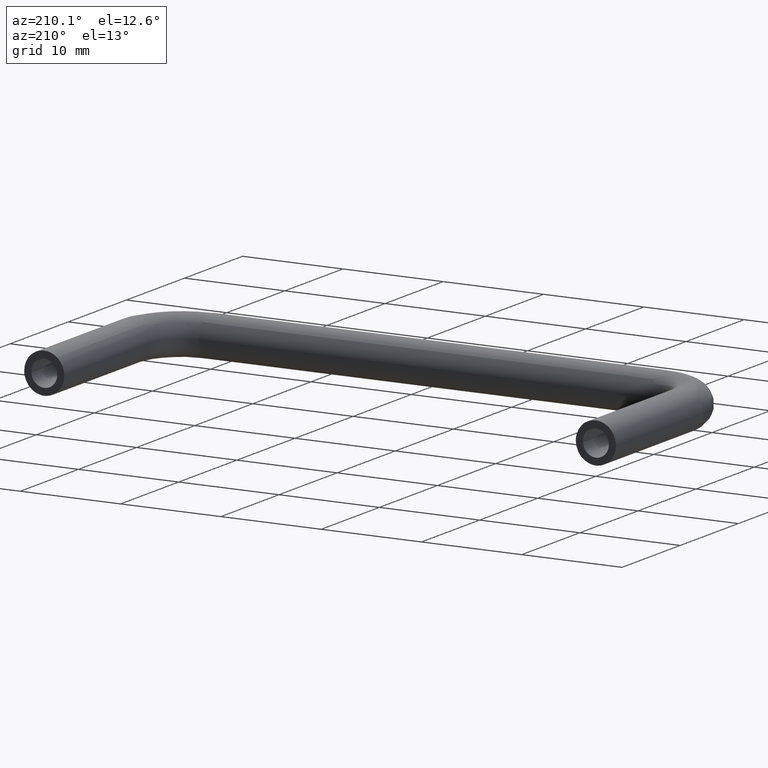
[diagram: clean part render]
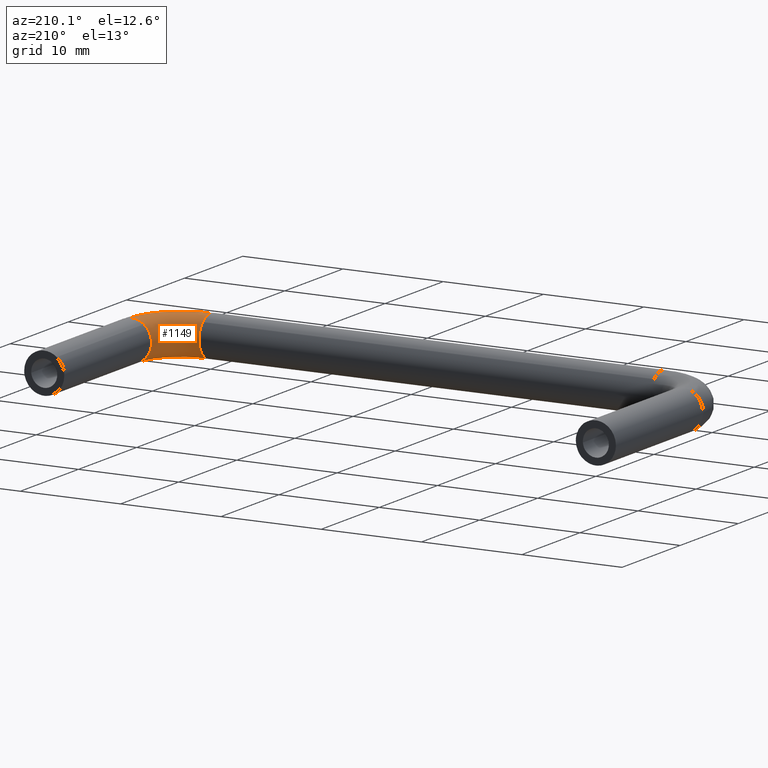
[diagram: same view with one face highlighted and labeled with its STEP entity id]
A machine part, auxiliary view. The second image highlights one B-rep face of the part: STEP entity #1149.
In plain terms, the highlighted face is a freeform B-spline surface patch.
Its self-contained STEP definition (entity closure, byte-faithful):
#430=CARTESIAN_POINT('',(54.974867919853978,-15.000000000286191,-1.999842088402865));
#431=VERTEX_POINT('',#430);
#449=CARTESIAN_POINT('',(53.0,-15.0,0.0));
#450=VERTEX_POINT('',#449);
#451=CARTESIAN_POINT('',(53.0,-15.0,0.0));
#452=CARTESIAN_POINT('',(53.000000000000007,-15.000000000000004,-1.975023859065361));
#453=CARTESIAN_POINT('',(54.974867919853985,-15.000000000286191,-1.999842088402865));
#461=(BOUNDED_CURVE()B_SPLINE_CURVE(2,(#451,#452,#453),.UNSPECIFIED.,.F.,.U.)B_SPLINE_CURVE_WITH_KNOTS((3,3),(0.0,0.247784295855015),.UNSPECIFIED.)CURVE()GEOMETRIC_REPRESENTATION_ITEM()RATIONAL_B_SPLINE_CURVE((1.0,0.709702640062400,0.994854295490464))REPRESENTATION_ITEM(''));
#462=EDGE_CURVE('',#450,#431,#461,.T.);
#464=CARTESIAN_POINT('',(53.754970726723911,-15.0,1.565216313704150));
#465=VERTEX_POINT('',#464);
#466=CARTESIAN_POINT('',(53.754970726723919,-14.999999999999998,1.565216313704151));
#467=CARTESIAN_POINT('',(53.000000000000007,-14.999999999999996,0.964685481633799));
#468=CARTESIAN_POINT('',(53.0,-15.0,0.0));
#476=(BOUNDED_CURVE()B_SPLINE_CURVE(2,(#466,#467,#468),.UNSPECIFIED.,.F.,.U.)B_SPLINE_CURVE_WITH_KNOTS((3,3),(0.857863877391610,1.0),.UNSPECIFIED.)CURVE()GEOMETRIC_REPRESENTATION_ITEM()RATIONAL_B_SPLINE_CURVE((0.856305618644017,0.833477174158261,1.0))REPRESENTATION_ITEM(''));
#477=EDGE_CURVE('',#465,#450,#476,.T.);
#595=CARTESIAN_POINT('',(55.139466505416507,-15.000000000531360,1.995131347522489));
#596=VERTEX_POINT('',#595);
#597=CARTESIAN_POINT('',(55.139466505416500,-15.000000000531351,1.995131347522490));
#598=CARTESIAN_POINT('',(55.069818234023344,-14.999999999999996,2.000000000000000));
#599=CARTESIAN_POINT('',(55.0,-15.0,2.0));
#600=CARTESIAN_POINT('',(54.301568733155690,-15.000000000000002,2.0));
#601=CARTESIAN_POINT('',(53.754970726723919,-15.000000000000002,1.565216313704150));
#609=(BOUNDED_CURVE()B_SPLINE_CURVE(2,(#597,#598,#599,#600,#601),.UNSPECIFIED.,.F.,.U.)B_SPLINE_CURVE_WITH_KNOTS((3,2,3),(0.737833686144535,0.750000000000000,0.857863877391611),.UNSPECIFIED.)CURVE()GEOMETRIC_REPRESENTATION_ITEM()RATIONAL_B_SPLINE_CURVE((0.972879875560915,0.985746276695113,1.0,0.873629607028286,0.856305618644017))REPRESENTATION_ITEM(''));
#610=EDGE_CURVE('',#596,#465,#609,.T.);
#740=CARTESIAN_POINT('',(50.0,-18.648820547822240,1.474555556095089));
#741=VERTEX_POINT('',#740);
#747=CARTESIAN_POINT('',(50.0,-18.0,0.0));
#748=VERTEX_POINT('',#747);
#749=CARTESIAN_POINT('',(50.0,-18.648820547822240,1.474555556095090));
#750=CARTESIAN_POINT('',(50.0,-18.000000000000011,0.880021841347253));
#751=CARTESIAN_POINT('',(50.0,-18.0,0.0));
#759=(BOUNDED_CURVE()B_SPLINE_CURVE(2,(#749,#750,#751),.UNSPECIFIED.,.F.,.U.)B_SPLINE_CURVE_WITH_KNOTS((3,3),(0.868415110489789,1.0),.UNSPECIFIED.)CURVE()GEOMETRIC_REPRESENTATION_ITEM()RATIONAL_B_SPLINE_CURVE((0.853959793007834,0.845838712656567,1.0))REPRESENTATION_ITEM(''));
#760=EDGE_CURVE('',#741,#748,#759,.T.);
#762=CARTESIAN_POINT('',(50.000000000475538,-19.974867919470359,-1.999842088398044));
#763=VERTEX_POINT('',#762);
#764=CARTESIAN_POINT('',(50.0,-18.0,0.0));
#765=CARTESIAN_POINT('',(50.0,-18.0,-1.975023858307581));
#766=CARTESIAN_POINT('',(50.000000000475538,-19.974867919470363,-1.999842088398044));
#774=(BOUNDED_CURVE()B_SPLINE_CURVE(2,(#764,#765,#766),.UNSPECIFIED.,.F.,.U.)B_SPLINE_CURVE_WITH_KNOTS((3,3),(0.0,0.247784295787543),.UNSPECIFIED.)CURVE()GEOMETRIC_REPRESENTATION_ITEM()RATIONAL_B_SPLINE_CURVE((1.0,0.709702640141448,0.994854295335170))REPRESENTATION_ITEM(''));
#775=EDGE_CURVE('',#748,#763,#774,.T.);
#809=CARTESIAN_POINT('',(50.000000000851998,-20.139466506511710,1.995131347445931));
#810=VERTEX_POINT('',#809);
#824=CARTESIAN_POINT('',(50.000000000852005,-20.139466506511706,1.995131347445932));
#825=CARTESIAN_POINT('',(49.999999999999993,-20.069818235122554,2.000000000000000));
#826=CARTESIAN_POINT('',(50.0,-20.0,2.0));
#827=CARTESIAN_POINT('',(50.000000000000007,-19.222243288176706,2.000000000000000));
#828=CARTESIAN_POINT('',(50.0,-18.648820547822240,1.474555556095090));
#836=(BOUNDED_CURVE()B_SPLINE_CURVE(2,(#824,#825,#826,#827,#828),.UNSPECIFIED.,.F.,.U.)B_SPLINE_CURVE_WITH_KNOTS((3,2,3),(0.737833685955721,0.750000000000000,0.868415110489789),.UNSPECIFIED.)CURVE()GEOMETRIC_REPRESENTATION_ITEM()RATIONAL_B_SPLINE_CURVE((0.972879875161557,0.985746276473903,1.0,0.861268068529980,0.853959793007834))REPRESENTATION_ITEM(''));
#837=EDGE_CURVE('',#810,#741,#836,.T.);
#1086=CARTESIAN_POINT('',(49.642616424758444,-20.127025627529385,1.995131355377935));
#1087=CARTESIAN_POINT('',(55.537966016255389,-20.537965862154927,1.995131355377935));
#1088=CARTESIAN_POINT('',(55.127025617584778,-14.642616282092858,1.995131355377935));
#1089=CARTESIAN_POINT('',(49.646586975436662,-20.070064097976729,1.999122819776260));
#1090=CARTESIAN_POINT('',(55.476438916955821,-20.476438764567408,1.999122819776260));
#1091=CARTESIAN_POINT('',(55.070064088142594,-14.646586834356125,1.999122819776261));
#1092=CARTESIAN_POINT('',(49.650566901038616,-20.012968075746208,1.999842088407632));
#1093=CARTESIAN_POINT('',(55.414766545146712,-20.414766394474380,1.999842088407632));
#1094=CARTESIAN_POINT('',(55.012968066022815,-14.650566761546829,1.999842088407631));
#1095=CARTESIAN_POINT('',(49.789630115157770,-18.017966872477039,2.024974168174338));
#1096=CARTESIAN_POINT('',(53.259862382629876,-18.259862291920356,2.024974168174337));
#1097=CARTESIAN_POINT('',(53.017966866623262,-14.789630031179273,2.024974168174339));
#1098=CARTESIAN_POINT('',(49.791377727036796,-17.992895628269377,0.025132079766706));
#1099=CARTESIAN_POINT('',(53.232781632796758,-18.232781542840765,0.025132079766706));
#1100=CARTESIAN_POINT('',(52.992895622464196,-14.791377643755926,0.025132079766706));
#1101=CARTESIAN_POINT('',(49.793125338915807,-17.967824384061721,-1.974710008640927));
#1102=CARTESIAN_POINT('',(53.205700882963605,-18.205700793761157,-1.974710008640926));
#1103=CARTESIAN_POINT('',(52.967824378305181,-14.793125256332580,-1.974710008640926));
#1104=CARTESIAN_POINT('',(49.654062124796646,-19.962825587330876,-1.999842088407632));
#1105=CARTESIAN_POINT('',(55.360605045480405,-20.360604896315191,-1.999842088407632));
#1106=CARTESIAN_POINT('',(54.962825577704749,-14.654061986700141,-1.999842088407631));
#1114=(BOUNDED_SURFACE()B_SPLINE_SURFACE(2,2,((#1086,#1089,#1092,#1095,#1098,#1101,#1104),(#1087,#1090,#1093,#1096,#1099,#1102,#1105),(#1088,#1091,#1094,#1097,#1100,#1103,#1106)),.UNSPECIFIED.,.F.,.F.,.U.)B_SPLINE_SURFACE_WITH_KNOTS((3,3),(3,2,2,3),(0.0,9.366029501457296),(0.0,0.132548213551443,3.446256712536212,6.759965211520981),.UNSPECIFIED.)GEOMETRIC_REPRESENTATION_ITEM()RATIONAL_B_SPLINE_SURFACE(((0.895729732449210,0.905606490046838,0.916342095240933,0.647951709431553,0.916342095240933,0.647951709431553,0.916342095240933),(0.587800221482116,0.594281596491894,0.601326568744382,0.425202094466791,0.601326568744382,0.425202094466791,0.601326568744382),(0.895729743804760,0.905606501527600,0.916342106857795,0.647951717645915,0.916342106857795,0.647951717645915,0.916342106857795)))REPRESENTATION_ITEM('')SURFACE());
#1115=ORIENTED_EDGE('',*,*,#610,.T.);
#1116=ORIENTED_EDGE('',*,*,#477,.T.);
#1117=ORIENTED_EDGE('',*,*,#462,.T.);
#1118=CARTESIAN_POINT('',(50.000000000475538,-19.974867919470363,-1.999842088398044));
#1119=CARTESIAN_POINT('',(54.974867919660916,-19.974867919282204,-1.999842088407631));
#1120=CARTESIAN_POINT('',(54.974867919853978,-15.000000000286194,-1.999842088402865));
#1128=(BOUNDED_CURVE()B_SPLINE_CURVE(2,(#1118,#1119,#1120),.UNSPECIFIED.,.F.,.U.)B_SPLINE_CURVE_WITH_KNOTS((3,3),(-1.734750791459749,-0.265249208461151),.UNSPECIFIED.)CURVE()GEOMETRIC_REPRESENTATION_ITEM()RATIONAL_B_SPLINE_CURVE((0.889029723506041,0.628638946273689,0.889029723534073))REPRESENTATION_ITEM(''));
#1129=EDGE_CURVE('',#763,#431,#1128,.T.);
#1130=ORIENTED_EDGE('',*,*,#1129,.F.);
#1131=ORIENTED_EDGE('',*,*,#775,.F.);
#1132=ORIENTED_EDGE('',*,*,#760,.F.);
#1133=ORIENTED_EDGE('',*,*,#837,.F.);
#1134=CARTESIAN_POINT('',(50.000000000851998,-20.139466506511702,1.995131347445932));
#1135=CARTESIAN_POINT('',(55.139466502088183,-20.139466501446876,1.995131347680865));
#1136=CARTESIAN_POINT('',(55.139466505416507,-15.000000000531351,1.995131347522489));
#1144=(BOUNDED_CURVE()B_SPLINE_CURVE(2,(#1134,#1135,#1136),.UNSPECIFIED.,.F.,.U.)B_SPLINE_CURVE_WITH_KNOTS((3,3),(-1.734750791313886,-0.265249208556456),.UNSPECIFIED.)CURVE()GEOMETRIC_REPRESENTATION_ITEM()RATIONAL_B_SPLINE_CURVE((0.869031711755912,0.614498216630040,0.869031711800829))REPRESENTATION_ITEM(''));
#1145=EDGE_CURVE('',#810,#596,#1144,.T.);
#1146=ORIENTED_EDGE('',*,*,#1145,.T.);
#1147=EDGE_LOOP('',(#1115,#1116,#1117,#1130,#1131,#1132,#1133,#1146));
#1148=FACE_OUTER_BOUND('',#1147,.T.);
#1149=ADVANCED_FACE('',(#1148),#1114,.T.);